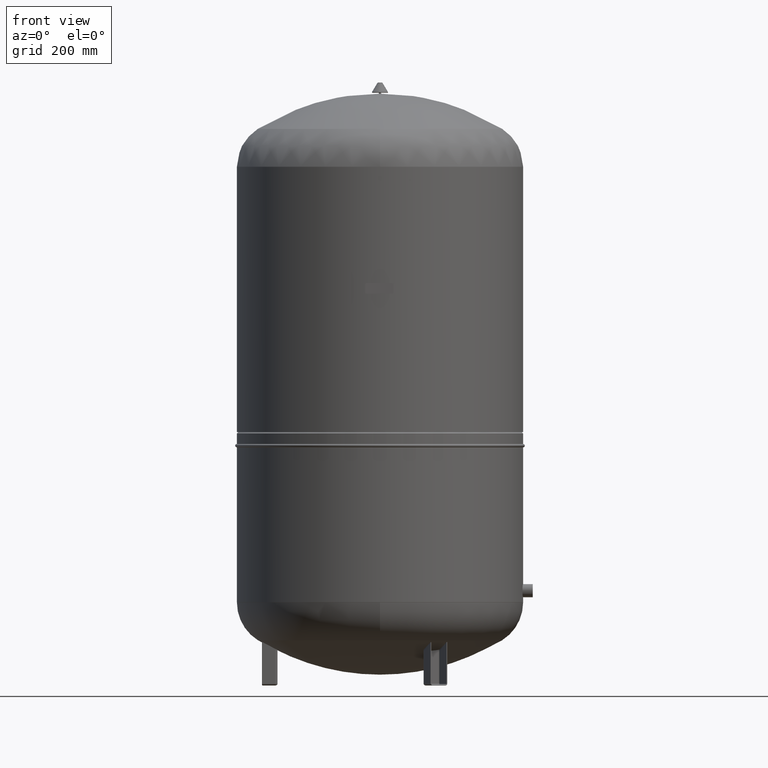
[diagram: clean part render]
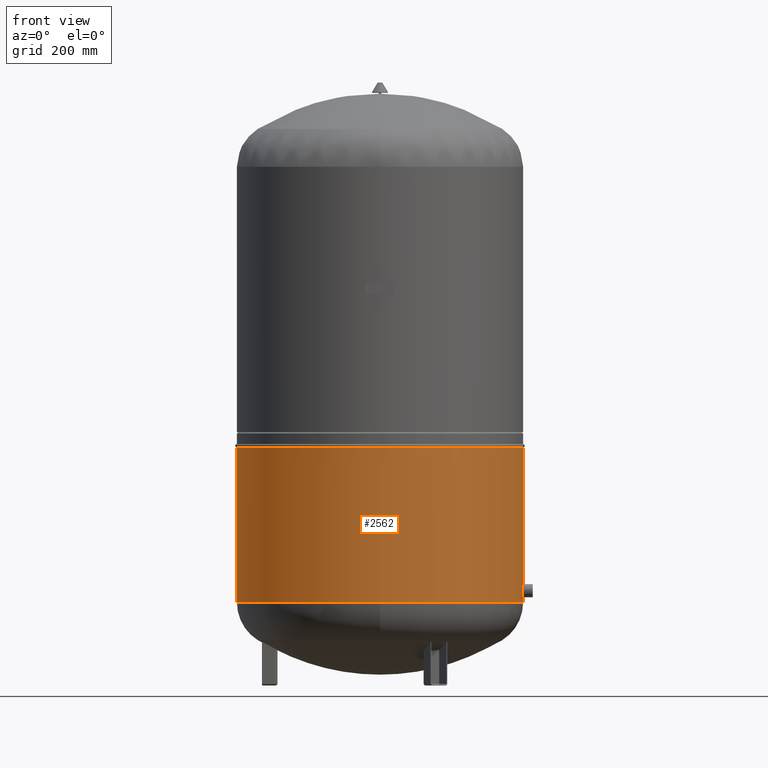
[diagram: same view with one face highlighted and labeled with its STEP entity id]
A machine part, front view. The second image highlights one B-rep face of the part: STEP entity #2562.
In plain terms, the highlighted cylindrical surface (partial cylindrical patch) has radius 370 mm, axis along (0, 0, 1).
Its self-contained STEP definition (entity closure, byte-faithful):
#2502=CARTESIAN_POINT('',(369.999999999999720,0.0,615.600000000000020));
#2503=VERTEX_POINT('',#2502);
#2512=CARTESIAN_POINT('',(-370.0,-4.531044E-014,615.600000000000020));
#2513=VERTEX_POINT('',#2512);
#2521=CARTESIAN_POINT('',(-9.313113E-016,0.0,615.600000000000020));
#2522=DIRECTION('',(0.0,0.0,1.0));
#2523=DIRECTION('',(1.0,0.0,0.0));
#2524=AXIS2_PLACEMENT_3D('',#2521,#2522,#2523);
#2525=CIRCLE('',#2524,369.999999999999720);
#2526=EDGE_CURVE('',#2513,#2503,#2525,.T.);
#2531=CARTESIAN_POINT('',(-9.927684E-015,0.0,234.249999999999890));
#2532=DIRECTION('',(0.0,0.0,1.0));
#2533=DIRECTION('',(1.0,0.0,0.0));
#2534=AXIS2_PLACEMENT_3D('',#2531,#2532,#2533);
#2535=CYLINDRICAL_SURFACE('',#2534,370.0);
#2536=CARTESIAN_POINT('',(370.0,0.0,215.0));
#2537=VERTEX_POINT('',#2536);
#2538=CARTESIAN_POINT('',(369.999999999999720,0.0,615.600000000000020));
#2539=DIRECTION('',(0.0,0.0,-1.0));
#2540=VECTOR('',#2539,400.600000000000020);
#2541=LINE('',#2538,#2540);
#2542=EDGE_CURVE('',#2503,#2537,#2541,.T.);
#2543=ORIENTED_EDGE('',*,*,#2542,.F.);
#2544=ORIENTED_EDGE('',*,*,#2526,.F.);
#2545=CARTESIAN_POINT('',(-370.0,4.531044E-014,215.0));
#2546=VERTEX_POINT('',#2545);
#2547=CARTESIAN_POINT('',(-370.0,-4.531044E-014,615.600000000000020));
#2548=DIRECTION('',(0.0,0.0,-1.0));
#2549=VECTOR('',#2548,400.600000000000020);
#2550=LINE('',#2547,#2549);
#2551=EDGE_CURVE('',#2513,#2546,#2550,.T.);
#2552=ORIENTED_EDGE('',*,*,#2551,.T.);
#2553=CARTESIAN_POINT('',(-9.927684E-015,0.0,215.0));
#2554=DIRECTION('',(0.0,0.0,-1.0));
#2555=DIRECTION('',(1.0,0.0,0.0));
#2556=AXIS2_PLACEMENT_3D('',#2553,#2554,#2555);
#2557=CIRCLE('',#2556,370.0);
#2558=EDGE_CURVE('',#2537,#2546,#2557,.T.);
#2559=ORIENTED_EDGE('',*,*,#2558,.F.);
#2560=EDGE_LOOP('',(#2543,#2544,#2552,#2559));
#2561=FACE_OUTER_BOUND('',#2560,.T.);
#2562=ADVANCED_FACE('',(#2561),#2535,.T.);